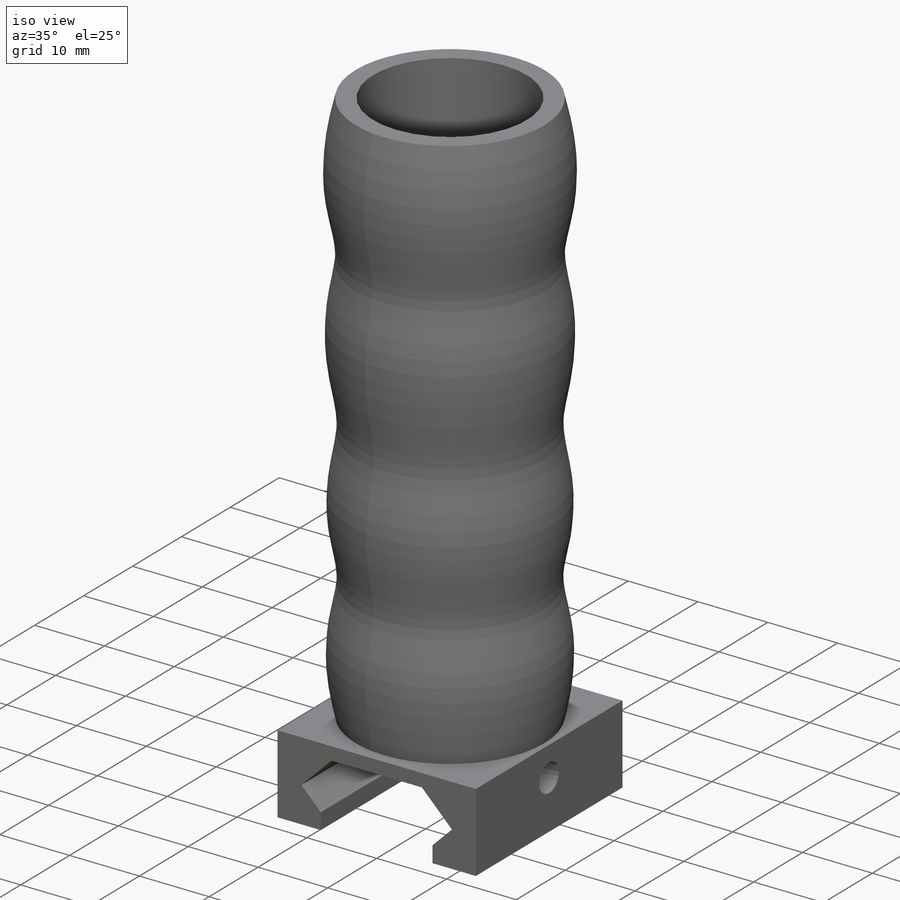
[diagram: iso view]
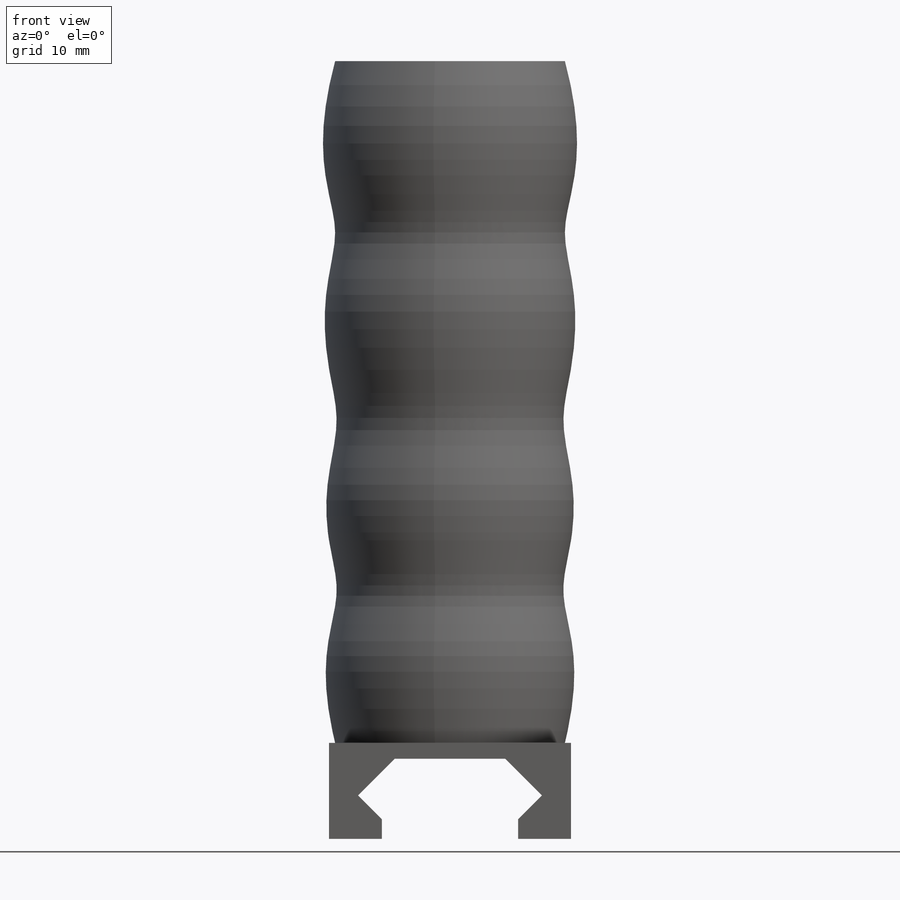
[diagram: front view]
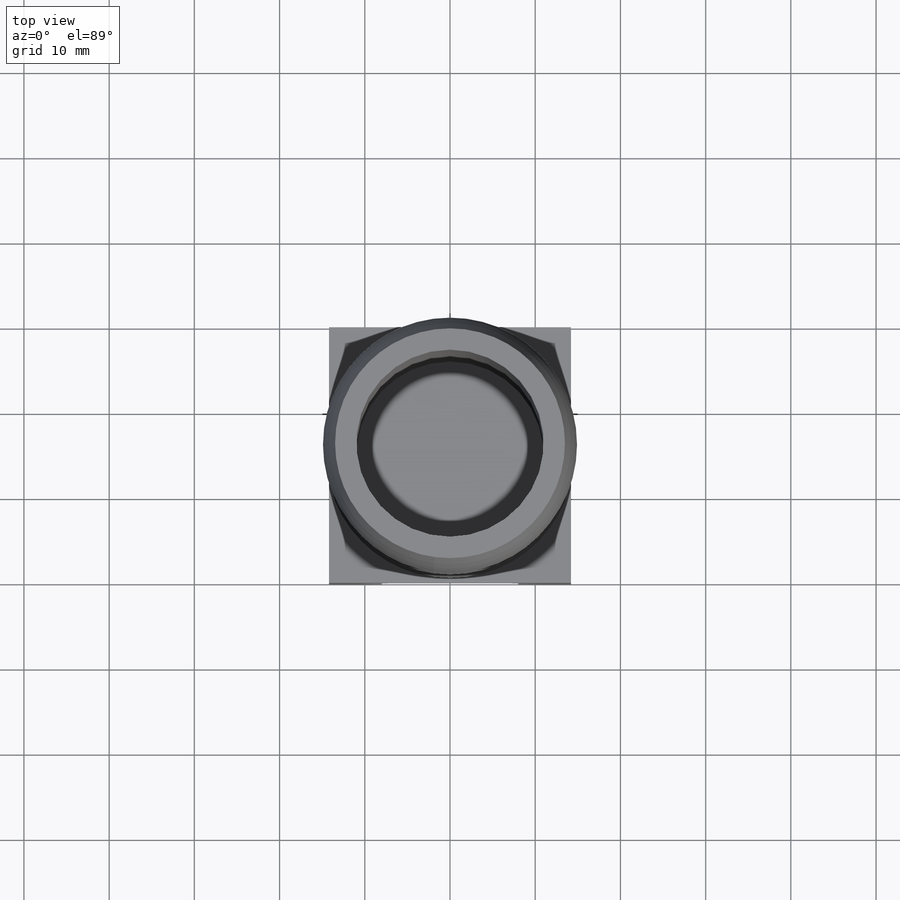
[diagram: top view]
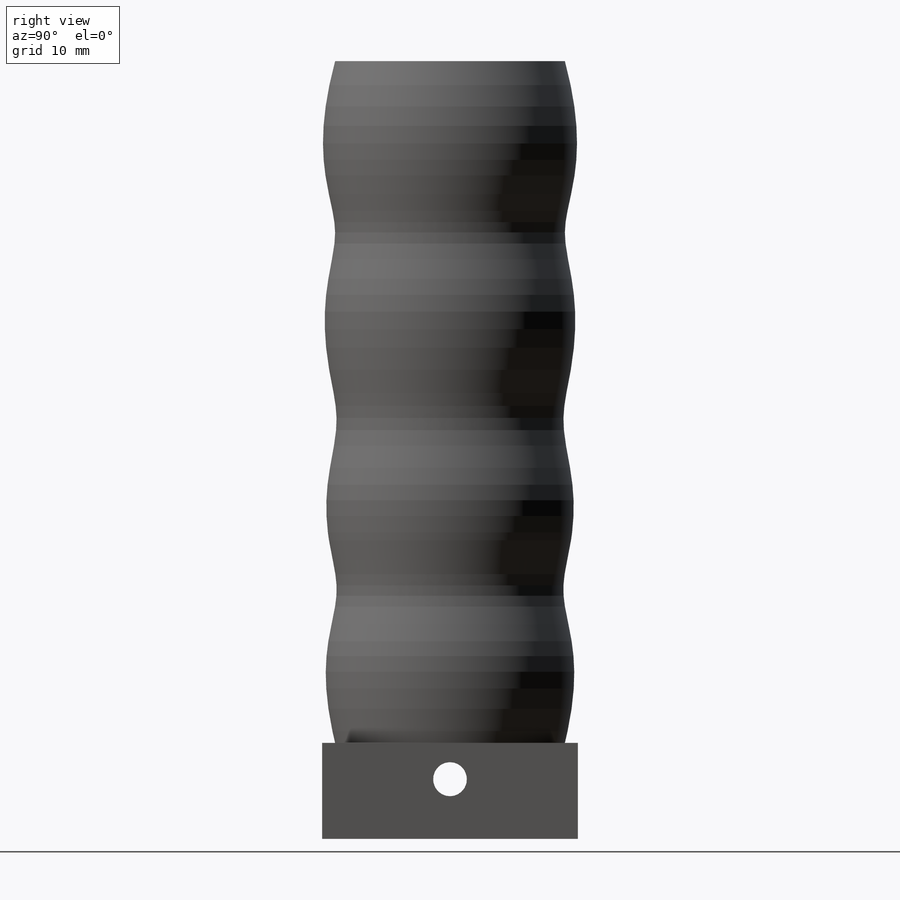
[diagram: right view]
SOLIDWORKS PART (.sldprt)
format: sldprt  version: not decoded by parser v0  size: 272,384 bytes
history: native  units: mm
features: sketch x5, cut_extrude x2, material x1, extrude x1, revolve x1 (+12 scaffold rows collapsed)
feature tree (22):
  scaffold x12  (default folders/planes/origin — collapsed)
  material  "Material <not specified>"
  sketch  "Sketch1"  dims[c1.D1=~20.728632mm c1.D3=~17.622721mm c1.D4=~17.773618mm c1.D6=15.5mm c1.D2=20.1mm c2.D3=10.0mm c2.D4=28.4mm c2.D5=19.4mm c2.D1=~31.562526mm c2.D2=~4.429358mm c3.D1=3.0mm c3.D2=3.0mm c3.D3=3.0mm c3.D4=5.0mm c3.D5=~5.001331mm c4.D4=3.0mm c4.D5=3.0mm c4.D1=3.0mm c4.D2=3.0mm c5.D4=2.0mm]
  extrude  "Boss-Extrude1"  Depth=30mm
  sketch  "Sketch3"  dims[D1=15.0mm D2=7.0mm]
  cut_extrude  "Cut-Extrude2"  [1 undecoded]
  sketch  "Sketch4"  dims[D1=~32.222076mm]
  sketch  "Sketch9"  dims[D1=20.0mm D2=20.0mm D3=20.0mm D4=20.0mm D5=~13.483403mm]
  revolve  "Revolve2"  Angle=360deg
  sketch  "Sketch11"  dims[D1=2.5mm]
  cut_extrude  "Cut-Extrude3"  [1 undecoded]
decode coverage: 7 of 9 modeling features carry decoded parameters
note: ~ marks probable driven/reference dimensions
note: 2 parameter values undecoded
note: suppression state not decoded; provenance and decode notes live in map.json
